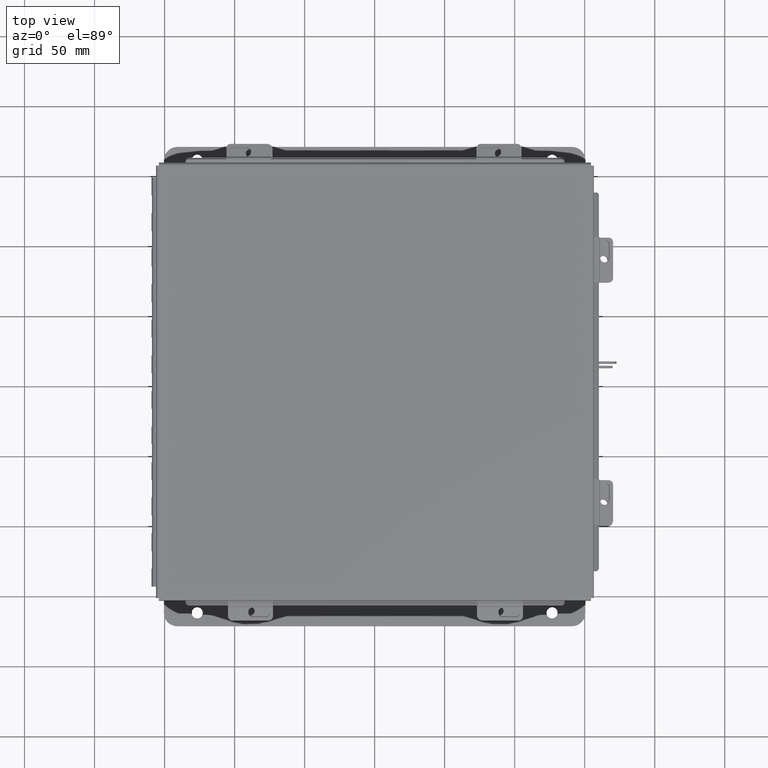
[diagram: clean part render]
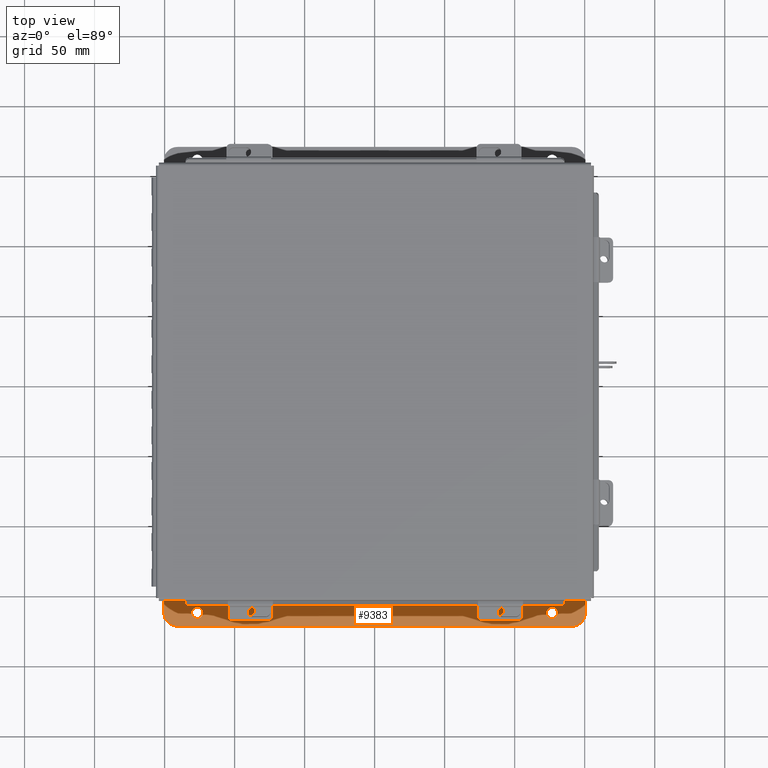
[diagram: same view with one face highlighted and labeled with its STEP entity id]
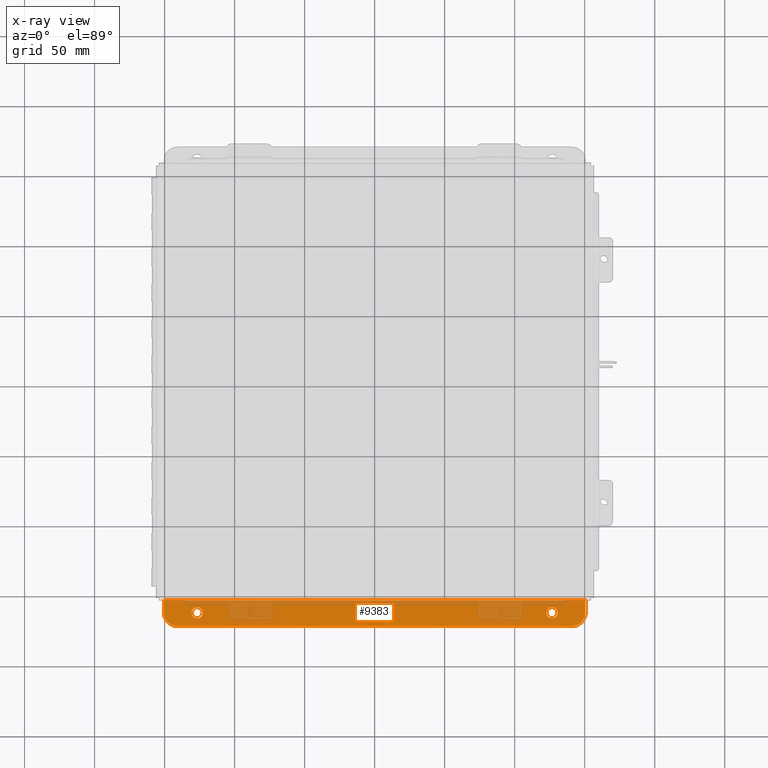
[diagram: x-ray of the same camera — body ghosted, the highlighted face saturated]
A machine part, top view. The second image highlights one B-rep face of the part: STEP entity #9383.
The next image is the same camera in x-ray: the body ghosted, the highlighted face saturated — about 32% of this face is hidden behind the body in this view.
In plain terms, the highlighted planar face has unit normal (0, -0, 1).
Its self-contained STEP definition (entity closure, byte-faithful):
#188 = DIRECTION ( 'NONE',  ( 4.919856193148104900E-031, 1.000000000000000000, -3.702694488566362300E-015 ) ) ;
#433 = CARTESIAN_POINT ( 'NONE',  ( 4.987799999999998200, 0.5188000000000087000, -4.112300000000001200 ) ) ;
#546 = DIRECTION ( 'NONE',  ( 0.0000000000000000000, -1.000000000000000000, 4.370956789862820400E-015 ) ) ;
#708 = ORIENTED_EDGE ( 'NONE', *, *, #3413, .T. ) ;
#857 = DIRECTION ( 'NONE',  ( 0.0000000000000000000, -1.000000000000000000, 3.502369222646487400E-015 ) ) ;
#904 = VERTEX_POINT ( 'NONE', #12038 ) ;
#930 = CIRCLE ( 'NONE', #1268, 0.3750000000000000600 ) ;
#971 = CARTESIAN_POINT ( 'NONE',  ( -4.987799999999992000, 0.3628000000000008400, -4.112300000000001200 ) ) ;
#988 = DIRECTION ( 'NONE',  ( -4.919856193148104900E-031, -1.000000000000000000, 3.702694488566362300E-015 ) ) ;
#1144 = CARTESIAN_POINT ( 'NONE',  ( 5.925299999999999100, 0.01300000000000885000, -4.112300000000003800 ) ) ;
#1268 = AXIS2_PLACEMENT_3D ( 'NONE', #13823, #11657, #11471 ) ;
#1304 = VERTEX_POINT ( 'NONE', #433 ) ;
#1490 = EDGE_CURVE ( 'NONE', #10011, #17157, #6455, .T. ) ;
#1591 = CARTESIAN_POINT ( 'NONE',  ( 4.987800000000007100, 0.3628000000000085000, -4.112300000000001200 ) ) ;
#2108 = ORIENTED_EDGE ( 'NONE', *, *, #1490, .T. ) ;
#2353 = DIRECTION ( 'NONE',  ( -0.0000000000000000000, -3.702694488566362300E-015, -1.000000000000000000 ) ) ;
#2461 = ORIENTED_EDGE ( 'NONE', *, *, #6762, .T. ) ;
#2585 = AXIS2_PLACEMENT_3D ( 'NONE', #17092, #8804, #546 ) ;
#2712 = AXIS2_PLACEMENT_3D ( 'NONE', #16347, #14822, #857 ) ;
#2914 = CARTESIAN_POINT ( 'NONE',  ( 4.987799999999998200, 0.2068000000000083400, -4.112300000000000300 ) ) ;
#3046 = CARTESIAN_POINT ( 'NONE',  ( -5.925300000000000000, 0.01300000000000010700, -4.112299999999999400 ) ) ;
#3413 = EDGE_CURVE ( 'NONE', #14528, #16021, #930, .T. ) ;
#3671 = DIRECTION ( 'NONE',  ( 0.0000000000000000000, -1.000000000000000000, 3.502369222646487400E-015 ) ) ;
#4035 = CARTESIAN_POINT ( 'NONE',  ( 5.925299999999999100, 8.741913579725642300E-015, -4.112300000000003800 ) ) ;
#4178 = EDGE_CURVE ( 'NONE', #1304, #10845, #8434, .T. ) ;
#4221 = VERTEX_POINT ( 'NONE', #3046 ) ;
#4871 = ORIENTED_EDGE ( 'NONE', *, *, #12963, .F. ) ;
#5083 = VECTOR ( 'NONE', #188, 39.37007874015748100 ) ;
#5221 = VERTEX_POINT ( 'NONE', #12199 ) ;
#5243 = DIRECTION ( 'NONE',  ( 0.0000000000000000000, -1.000000000000000000, 3.502369222646487400E-015 ) ) ;
#5632 = ORIENTED_EDGE ( 'NONE', *, *, #10654, .F. ) ;
#6028 = DIRECTION ( 'NONE',  ( -1.000000000000000000, -4.910036603141682400E-031, 0.0000000000000000000 ) ) ;
#6044 = ORIENTED_EDGE ( 'NONE', *, *, #6097, .F. ) ;
#6097 = EDGE_CURVE ( 'NONE', #5221, #4221, #7987, .T. ) ;
#6139 = ORIENTED_EDGE ( 'NONE', *, *, #4178, .T. ) ;
#6455 = CIRCLE ( 'NONE', #2712, 0.1560000000000001700 ) ;
#6762 = EDGE_CURVE ( 'NONE', #17157, #10011, #12301, .T. ) ;
#7123 = VECTOR ( 'NONE', #6028, 39.37007874015748100 ) ;
#7178 = FACE_BOUND ( 'NONE', #12418, .T. ) ;
#7246 = CARTESIAN_POINT ( 'NONE',  ( -4.987800000000000900, 0.5188000000000010400, -4.112300000000001200 ) ) ;
#7636 = CARTESIAN_POINT ( 'NONE',  ( 5.925300000000008000, 0.3628000000000085000, -4.112300000000001200 ) ) ;
#7744 = VERTEX_POINT ( 'NONE', #12268 ) ;
#7747 = EDGE_CURVE ( 'NONE', #14528, #5221, #15892, .T. ) ;
#7952 = EDGE_CURVE ( 'NONE', #10845, #1304, #13719, .T. ) ;
#7987 = LINE ( 'NONE', #1144, #7123 ) ;
#8422 = CARTESIAN_POINT ( 'NONE',  ( -5.925299999999992900, 0.7378000000000000100, -4.112300000000002100 ) ) ;
#8434 = CIRCLE ( 'NONE', #17587, 0.1560000000000001700 ) ;
#8804 = DIRECTION ( 'NONE',  ( 0.0000000000000000000, 3.702694488566362300E-015, 1.000000000000000000 ) ) ;
#9296 = DIRECTION ( 'NONE',  ( 1.000000000000000000, 4.910036603141682400E-031, -0.0000000000000000000 ) ) ;
#9383 = ADVANCED_FACE ( 'NONE', ( #7178, #10424, #17757 ), #17517, .T. ) ;
#9499 = ORIENTED_EDGE ( 'NONE', *, *, #17242, .T. ) ;
#9560 = EDGE_LOOP ( 'NONE', ( #6139, #17366 ) ) ;
#10011 = VERTEX_POINT ( 'NONE', #15023 ) ;
#10031 = CARTESIAN_POINT ( 'NONE',  ( 5.550300000000008000, 0.7378000000000086700, -4.112300000000002100 ) ) ;
#10094 = VECTOR ( 'NONE', #9296, 39.37007874015748100 ) ;
#10424 = FACE_BOUND ( 'NONE', #9560, .T. ) ;
#10585 = DIRECTION ( 'NONE',  ( 0.0000000000000000000, 3.702694488566362300E-015, 1.000000000000000000 ) ) ;
#10654 = EDGE_CURVE ( 'NONE', #7744, #16021, #13781, .T. ) ;
#10811 = CARTESIAN_POINT ( 'NONE',  ( 4.987800000000007100, 0.3628000000000085000, -4.112300000000001200 ) ) ;
#10845 = VERTEX_POINT ( 'NONE', #2914 ) ;
#11260 = AXIS2_PLACEMENT_3D ( 'NONE', #10811, #15822, #3671 ) ;
#11300 = CIRCLE ( 'NONE', #2585, 0.3750000000000000600 ) ;
#11471 = DIRECTION ( 'NONE',  ( 0.0000000000000000000, -1.000000000000000000, 4.370956789862820400E-015 ) ) ;
#11657 = DIRECTION ( 'NONE',  ( 0.0000000000000000000, 3.702694488566362300E-015, 1.000000000000000000 ) ) ;
#11861 = ORIENTED_EDGE ( 'NONE', *, *, #7747, .F. ) ;
#12038 = CARTESIAN_POINT ( 'NONE',  ( -5.925299999999992900, 0.3628000000000008400, -4.112300000000001200 ) ) ;
#12199 = CARTESIAN_POINT ( 'NONE',  ( 5.925299999999999100, 0.01300000000000885000, -4.112300000000003800 ) ) ;
#12212 = VECTOR ( 'NONE', #13551, 39.37007874015748100 ) ;
#12233 = DIRECTION ( 'NONE',  ( -0.0000000000000000000, -3.702694488566362300E-015, -1.000000000000000000 ) ) ;
#12268 = CARTESIAN_POINT ( 'NONE',  ( -5.550299999999990200, 0.7378000000000000100, -4.112300000000002100 ) ) ;
#12301 = CIRCLE ( 'NONE', #15755, 0.1560000000000001700 ) ;
#12418 = EDGE_LOOP ( 'NONE', ( #2461, #2108 ) ) ;
#12908 = EDGE_LOOP ( 'NONE', ( #5632, #9499, #4871, #6044, #11861, #708 ) ) ;
#12963 = EDGE_CURVE ( 'NONE', #4221, #904, #15672, .T. ) ;
#13500 = CARTESIAN_POINT ( 'NONE',  ( 5.925300000000008000, 0.7378000000000086700, -4.112300000000006500 ) ) ;
#13551 = DIRECTION ( 'NONE',  ( -4.919856193148104900E-031, -1.000000000000000000, 3.702694488566362300E-015 ) ) ;
#13599 = AXIS2_PLACEMENT_3D ( 'NONE', #16158, #10585, #988 ) ;
#13719 = CIRCLE ( 'NONE', #11260, 0.1560000000000001700 ) ;
#13781 = LINE ( 'NONE', #13500, #10094 ) ;
#13823 = CARTESIAN_POINT ( 'NONE',  ( 5.550300000000008000, 0.3628000000000085000, -4.112300000000005600 ) ) ;
#14528 = VERTEX_POINT ( 'NONE', #7636 ) ;
#14530 = DIRECTION ( 'NONE',  ( 0.0000000000000000000, -1.000000000000000000, 3.502369222646487400E-015 ) ) ;
#14822 = DIRECTION ( 'NONE',  ( -0.0000000000000000000, -3.702694488566362300E-015, -1.000000000000000000 ) ) ;
#15023 = CARTESIAN_POINT ( 'NONE',  ( -4.987800000000000900, 0.2068000000000006800, -4.112300000000000300 ) ) ;
#15672 = LINE ( 'NONE', #8422, #5083 ) ;
#15755 = AXIS2_PLACEMENT_3D ( 'NONE', #971, #2353, #5243 ) ;
#15822 = DIRECTION ( 'NONE',  ( -0.0000000000000000000, -3.702694488566362300E-015, -1.000000000000000000 ) ) ;
#15892 = LINE ( 'NONE', #4035, #12212 ) ;
#16021 = VERTEX_POINT ( 'NONE', #10031 ) ;
#16158 = CARTESIAN_POINT ( 'NONE',  ( -2.035385365534024800E-024, -1.420560956705417000E-014, -4.112299999999999400 ) ) ;
#16347 = CARTESIAN_POINT ( 'NONE',  ( -4.987799999999992000, 0.3628000000000008400, -4.112300000000001200 ) ) ;
#17092 = CARTESIAN_POINT ( 'NONE',  ( -5.550299999999990200, 0.3628000000000008400, -4.112300000000005600 ) ) ;
#17157 = VERTEX_POINT ( 'NONE', #7246 ) ;
#17242 = EDGE_CURVE ( 'NONE', #7744, #904, #11300, .T. ) ;
#17366 = ORIENTED_EDGE ( 'NONE', *, *, #7952, .T. ) ;
#17517 = PLANE ( 'NONE',  #13599 ) ;
#17587 = AXIS2_PLACEMENT_3D ( 'NONE', #1591, #12233, #14530 ) ;
#17757 = FACE_OUTER_BOUND ( 'NONE', #12908, .T. ) ;